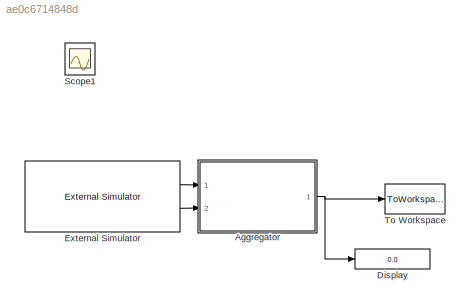
MODEL slx_ae0c6714848d
KIND model
CONFIG AbsTol = auto
CONFIG FixedStep = 1
CONFIG MaxStep = auto
CONFIG MinStep = auto
CONFIG RelTol = 1e-3
CONFIG SampleTimeConstraint = Unconstrained
CONFIG Solver = ode3
CONFIG SolverMode = Auto
CONFIG SolverName = ode3
CONFIG StartTime = 0.0
CONFIG StopTime = 10.0
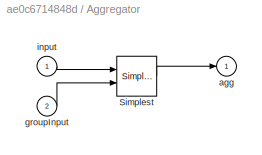
BLOCK [SubSystem] Aggregator
  AttributesFormatString = %<BlockChoice>
  BlockChoice = Simplest
  MemberBlocks = Average,Simple,Simple db Aggregator,Simplest
  Ports = [2, 1]
  RequestExecContextInheritance = off
  TemplateBlock = libAggregators/Aggregator
BLOCK [Reference] Aggregator/Simplest  REF=libAggregators/Simplest
  FunctionWithSeparateData = off
  GeneratePreprocessorConditionals = off
  Ports = [2, 1]
  ShowPortLabels = FromPortIcon
  SourceBlock = libAggregators/Simplest
  SystemSampleTime = -1
BLOCK [Outport] Aggregator/agg
  IconDisplay = Port number
BLOCK [Inport] Aggregator/groupInput
  IconDisplay = Port number
  Port = 2
BLOCK [Inport] Aggregator/input
  IconDisplay = Port number
BLOCK [Display] Display
  Decimation = 1
  Ports = [1]
BLOCK [Reference] External Simulator  REF=libSimulators/External Simulator
  Condition = %20151211%
  N = 10
  Ports = [0, 2]
  SourceBlock = libSimulators/External Simulator
  SourceType = slexVarSizeMATLABSystemGetDBIDsSysObj
  db_name = HeatingUnits
  db_password = unb.sql.2015
  db_username = sw_ETS
BLOCK [Scope] Scope1
  DataFormat = StructureWithTime
  Floating = off
  IOType = viewer
  NumInputPorts = 1
  Ports = []
  SampleTime = 0
  SaveName = ScopeData1
BLOCK [ToWorkspace] To Workspace
  FixptAsFi = on
  MaxDataPoints = inf
  Ports = [1]
  SampleTime = -1
  Save2DSignal = 3-D array (concatenate along third dimension)
  SaveFormat = Structure With Time
  VariableName = simout
NET Aggregator:1 -> Display:1, To Workspace:1
LINE External Simulator:1 -> Aggregator:1
LINE External Simulator:2 -> Aggregator:2
note: NET lines group one-source signal fan-out (src -> all destinations, sorted); 1:1 wires keep LINE
